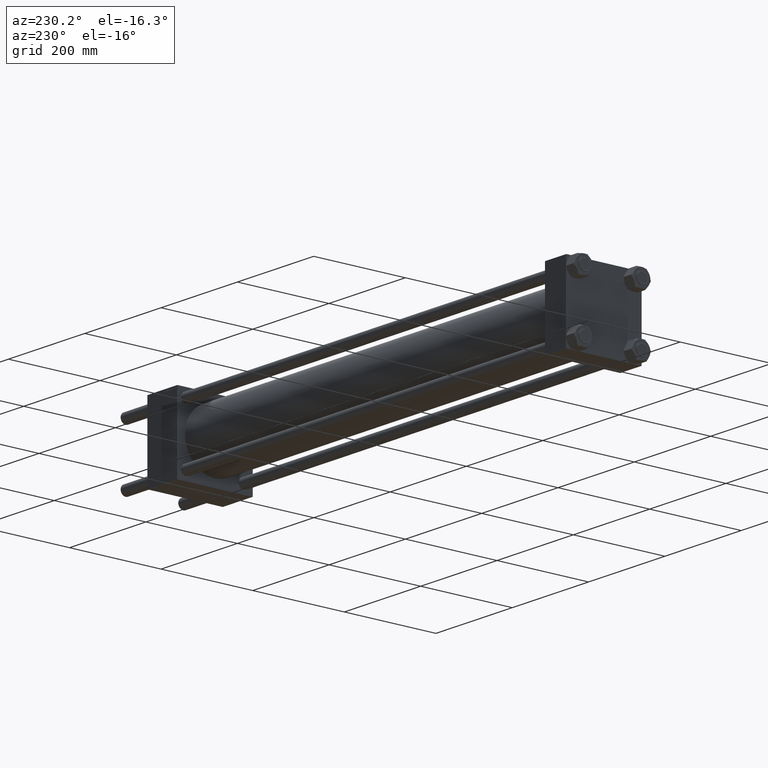
[diagram: clean part render]
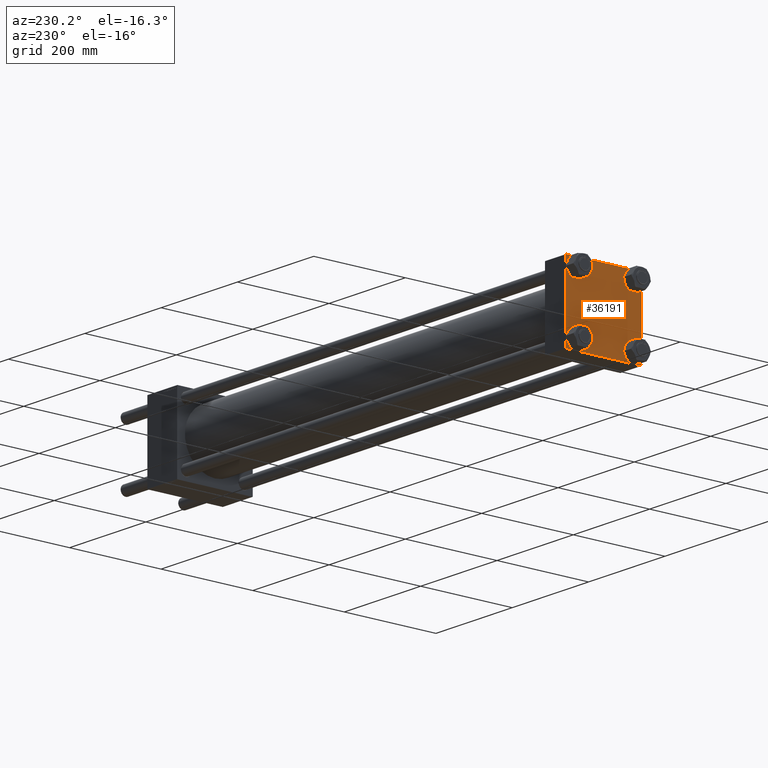
[diagram: same view with one face highlighted and labeled with its STEP entity id]
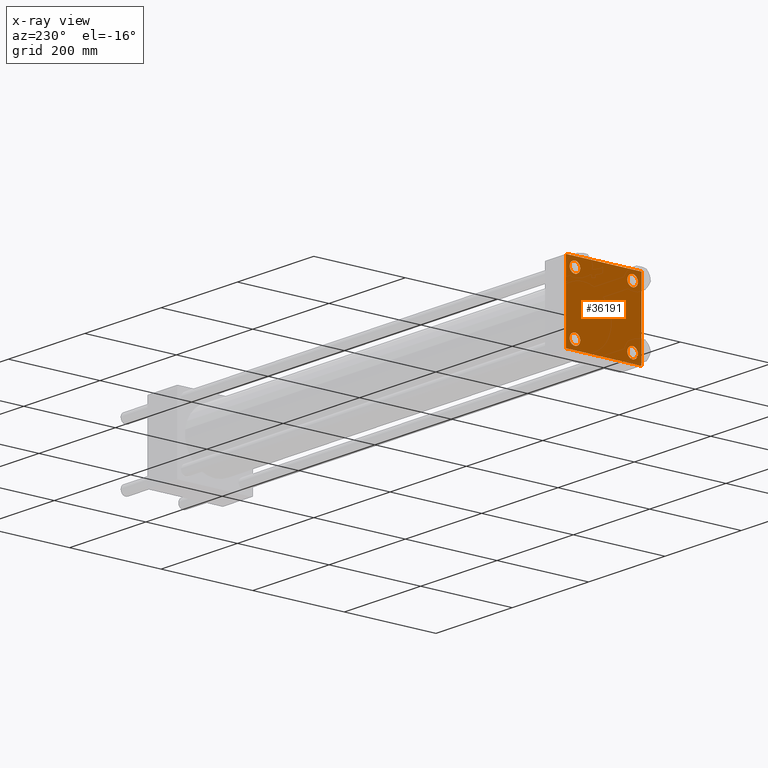
[diagram: x-ray of the same camera — body ghosted, the highlighted face saturated]
A machine part, auxiliary view. The second image highlights one B-rep face of the part: STEP entity #36191.
The next image is the same camera in x-ray: the body ghosted, the highlighted face saturated — about 0% of this face is hidden behind the body in this view.
In plain terms, the highlighted planar face has unit normal (-1, 0, 0).
Its self-contained STEP definition (entity closure, byte-faithful):
#197 = EDGE_CURVE ( 'NONE', #14874, #30146, #31650, .T. ) ;
#573 = CARTESIAN_POINT ( 'NONE',  ( 0.000000000000000000, 62.95000000000000284, -62.95000000000000284 ) ) ;
#669 = CARTESIAN_POINT ( 'NONE',  ( 0.000000000000000000, -82.25000000000000000, 82.25000000000000000 ) ) ;
#713 = DIRECTION ( 'NONE',  ( 0.000000000000000000, -1.000000000000000000, -1.682156097916903588E-16 ) ) ;
#848 = LINE ( 'NONE', #27758, #32586 ) ;
#852 = DIRECTION ( 'NONE',  ( 0.000000000000000000, 0.000000000000000000, 1.000000000000000000 ) ) ;
#1113 = ORIENTED_EDGE ( 'NONE', *, *, #48569, .T. ) ;
#1197 = CARTESIAN_POINT ( 'NONE',  ( 0.000000000000000000, -82.00000000000000000, -82.50000000000000000 ) ) ;
#1689 = LINE ( 'NONE', #7163, #2429 ) ;
#2043 = CARTESIAN_POINT ( 'NONE',  ( 0.000000000000000000, 62.95000000000000284, -74.45000000000001705 ) ) ;
#2089 = VECTOR ( 'NONE', #713, 1000.000000000000000 ) ;
#2276 = VERTEX_POINT ( 'NONE', #48879 ) ;
#2326 = VECTOR ( 'NONE', #52341, 1000.000000000000000 ) ;
#2429 = VECTOR ( 'NONE', #41906, 1000.000000000000000 ) ;
#2676 = DIRECTION ( 'NONE',  ( 0.000000000000000000, 0.000000000000000000, 1.000000000000000000 ) ) ;
#2876 = CIRCLE ( 'NONE', #7371, 11.50000000000001066 ) ;
#2967 = CARTESIAN_POINT ( 'NONE',  ( 0.000000000000000000, -62.94999999999998153, -62.95000000000001705 ) ) ;
#3061 = CARTESIAN_POINT ( 'NONE',  ( 0.000000000000000000, -82.49999999999997158, 82.00000000000001421 ) ) ;
#3318 = EDGE_CURVE ( 'NONE', #45412, #2276, #56685, .T. ) ;
#3422 = VECTOR ( 'NONE', #47336, 1000.000000000000114 ) ;
#4483 = CARTESIAN_POINT ( 'NONE',  ( 0.000000000000000000, -62.94999999999998153, -62.95000000000001705 ) ) ;
#4817 = DIRECTION ( 'NONE',  ( 0.000000000000000000, 0.000000000000000000, 1.000000000000000000 ) ) ;
#5152 = CARTESIAN_POINT ( 'NONE',  ( 0.000000000000000000, 62.95000000000000284, 51.44999999999999574 ) ) ;
#5168 = LINE ( 'NONE', #23394, #31184 ) ;
#5272 = DIRECTION ( 'NONE',  ( 0.000000000000000000, -0.7071067811865376918, 0.7071067811865574537 ) ) ;
#5434 = VERTEX_POINT ( 'NONE', #51246 ) ;
#5531 = DIRECTION ( 'NONE',  ( 1.000000000000000000, -0.000000000000000000, -0.000000000000000000 ) ) ;
#6561 = VERTEX_POINT ( 'NONE', #36132 ) ;
#6781 = VERTEX_POINT ( 'NONE', #16109 ) ;
#7163 = CARTESIAN_POINT ( 'NONE',  ( 0.000000000000000000, 82.50000000000002842, 82.50000000000002842 ) ) ;
#7294 = DIRECTION ( 'NONE',  ( 0.000000000000000000, 0.000000000000000000, 1.000000000000000000 ) ) ;
#7302 = DIRECTION ( 'NONE',  ( 1.000000000000000000, -0.000000000000000000, -0.000000000000000000 ) ) ;
#7371 = AXIS2_PLACEMENT_3D ( 'NONE', #26687, #5531, #18017 ) ;
#7379 = VERTEX_POINT ( 'NONE', #35644 ) ;
#8677 = ORIENTED_EDGE ( 'NONE', *, *, #28358, .T. ) ;
#9066 = DIRECTION ( 'NONE',  ( -0.000000000000000000, 0.7071067811865474617, 0.7071067811865474617 ) ) ;
#9516 = VERTEX_POINT ( 'NONE', #35990 ) ;
#9816 = DIRECTION ( 'NONE',  ( 0.000000000000000000, 0.000000000000000000, 1.000000000000000000 ) ) ;
#11070 = DIRECTION ( 'NONE',  ( 1.000000000000000000, -0.000000000000000000, -0.000000000000000000 ) ) ;
#12094 = AXIS2_PLACEMENT_3D ( 'NONE', #40049, #18060, #31649 ) ;
#12642 = DIRECTION ( 'NONE',  ( -1.000000000000000000, 0.000000000000000000, 0.000000000000000000 ) ) ;
#12663 = EDGE_CURVE ( 'NONE', #15718, #6561, #22298, .T. ) ;
#12742 = CARTESIAN_POINT ( 'NONE',  ( 0.000000000000000000, 62.95000000000000284, -62.95000000000000284 ) ) ;
#12775 = CIRCLE ( 'NONE', #17409, 11.50000000000001066 ) ;
#13392 = EDGE_CURVE ( 'NONE', #55598, #23619, #56504, .T. ) ;
#13498 = FACE_OUTER_BOUND ( 'NONE', #48703, .T. ) ;
#13940 = LINE ( 'NONE', #39727, #39045 ) ;
#14153 = DIRECTION ( 'NONE',  ( 1.000000000000000000, -0.000000000000000000, -0.000000000000000000 ) ) ;
#14224 = ORIENTED_EDGE ( 'NONE', *, *, #57176, .T. ) ;
#14426 = CIRCLE ( 'NONE', #49537, 11.50000000000001066 ) ;
#14588 = LINE ( 'NONE', #49613, #2089 ) ;
#14874 = VERTEX_POINT ( 'NONE', #3061 ) ;
#14976 = AXIS2_PLACEMENT_3D ( 'NONE', #12742, #14153, #9816 ) ;
#15718 = VERTEX_POINT ( 'NONE', #18898 ) ;
#15759 = CIRCLE ( 'NONE', #12094, 11.50000000000001066 ) ;
#16109 = CARTESIAN_POINT ( 'NONE',  ( 0.000000000000000000, 82.00000000000005684, 82.50000000000002842 ) ) ;
#16971 = CARTESIAN_POINT ( 'NONE',  ( 0.000000000000000000, 82.25000000000002842, 82.25000000000002842 ) ) ;
#17277 = CARTESIAN_POINT ( 'NONE',  ( 0.000000000000000000, 0.000000000000000000, 0.000000000000000000 ) ) ;
#17409 = AXIS2_PLACEMENT_3D ( 'NONE', #4483, #25902, #34887 ) ;
#17548 = EDGE_LOOP ( 'NONE', ( #45993, #45373 ) ) ;
#17857 = FACE_BOUND ( 'NONE', #18423, .T. ) ;
#18017 = DIRECTION ( 'NONE',  ( 0.000000000000000000, 0.000000000000000000, 1.000000000000000000 ) ) ;
#18060 = DIRECTION ( 'NONE',  ( 1.000000000000000000, -0.000000000000000000, -0.000000000000000000 ) ) ;
#18144 = FACE_BOUND ( 'NONE', #17548, .T. ) ;
#18244 = DIRECTION ( 'NONE',  ( 1.000000000000000000, -0.000000000000000000, -0.000000000000000000 ) ) ;
#18423 = EDGE_LOOP ( 'NONE', ( #42634, #8677 ) ) ;
#18496 = VERTEX_POINT ( 'NONE', #30512 ) ;
#18898 = CARTESIAN_POINT ( 'NONE',  ( 0.000000000000000000, -62.94999999999998153, 74.45000000000003126 ) ) ;
#20759 = AXIS2_PLACEMENT_3D ( 'NONE', #33360, #11070, #7294 ) ;
#21613 = FACE_BOUND ( 'NONE', #45976, .T. ) ;
#21885 = EDGE_CURVE ( 'NONE', #14874, #7379, #848, .T. ) ;
#22298 = CIRCLE ( 'NONE', #32466, 11.50000000000001066 ) ;
#22593 = ORIENTED_EDGE ( 'NONE', *, *, #56560, .T. ) ;
#22830 = DIRECTION ( 'NONE',  ( -0.000000000000000000, -0.7071067811865474617, -0.7071067811865474617 ) ) ;
#23301 = CIRCLE ( 'NONE', #14976, 11.50000000000001066 ) ;
#23394 = CARTESIAN_POINT ( 'NONE',  ( 0.000000000000000000, 82.25000000000001421, -82.25000000000001421 ) ) ;
#23619 = VERTEX_POINT ( 'NONE', #26690 ) ;
#24470 = CIRCLE ( 'NONE', #20759, 11.50000000000001066 ) ;
#25102 = ORIENTED_EDGE ( 'NONE', *, *, #41310, .T. ) ;
#25326 = VECTOR ( 'NONE', #9066, 1000.000000000000114 ) ;
#25902 = DIRECTION ( 'NONE',  ( 1.000000000000000000, -0.000000000000000000, -0.000000000000000000 ) ) ;
#26687 = CARTESIAN_POINT ( 'NONE',  ( 0.000000000000000000, 62.95000000000000284, 62.95000000000000284 ) ) ;
#26690 = CARTESIAN_POINT ( 'NONE',  ( 0.000000000000000000, 62.95000000000000284, -51.44999999999999574 ) ) ;
#27758 = CARTESIAN_POINT ( 'NONE',  ( 0.000000000000000000, -82.49999999999997158, 82.50000000000001421 ) ) ;
#28358 = EDGE_CURVE ( 'NONE', #6561, #15718, #24470, .T. ) ;
#28629 = ORIENTED_EDGE ( 'NONE', *, *, #55853, .T. ) ;
#30146 = VERTEX_POINT ( 'NONE', #33641 ) ;
#30352 = DIRECTION ( 'NONE',  ( 0.000000000000000000, 0.000000000000000000, 1.000000000000000000 ) ) ;
#30354 = CARTESIAN_POINT ( 'NONE',  ( 0.000000000000000000, 82.50000000000002842, 82.50000000000002842 ) ) ;
#30512 = CARTESIAN_POINT ( 'NONE',  ( 0.000000000000000000, 82.00000000000005684, -82.49999999999997158 ) ) ;
#31184 = VECTOR ( 'NONE', #22830, 1000.000000000000114 ) ;
#31540 = DIRECTION ( 'NONE',  ( 0.000000000000000000, -1.682156097916903588E-16, -1.000000000000000000 ) ) ;
#31553 = AXIS2_PLACEMENT_3D ( 'NONE', #573, #18244, #852 ) ;
#31649 = DIRECTION ( 'NONE',  ( 0.000000000000000000, 0.000000000000000000, 1.000000000000000000 ) ) ;
#31650 = LINE ( 'NONE', #669, #25326 ) ;
#32466 = AXIS2_PLACEMENT_3D ( 'NONE', #39614, #34702, #30352 ) ;
#32586 = VECTOR ( 'NONE', #31540, 1000.000000000000000 ) ;
#32861 = AXIS2_PLACEMENT_3D ( 'NONE', #17277, #12642, #4817 ) ;
#33360 = CARTESIAN_POINT ( 'NONE',  ( 0.000000000000000000, -62.94999999999998153, 62.95000000000001705 ) ) ;
#33641 = CARTESIAN_POINT ( 'NONE',  ( 0.000000000000000000, -81.99999999999997158, 82.50000000000001421 ) ) ;
#34702 = DIRECTION ( 'NONE',  ( 1.000000000000000000, -0.000000000000000000, -0.000000000000000000 ) ) ;
#34887 = DIRECTION ( 'NONE',  ( 0.000000000000000000, 0.000000000000000000, 1.000000000000000000 ) ) ;
#35188 = EDGE_CURVE ( 'NONE', #6781, #30146, #1689, .T. ) ;
#35644 = CARTESIAN_POINT ( 'NONE',  ( 0.000000000000000000, -82.50000000000000000, -81.99999999999998579 ) ) ;
#35990 = CARTESIAN_POINT ( 'NONE',  ( 0.000000000000000000, -62.94999999999998153, -51.45000000000000995 ) ) ;
#36132 = CARTESIAN_POINT ( 'NONE',  ( 0.000000000000000000, -62.94999999999998153, 51.45000000000000995 ) ) ;
#36191 = ADVANCED_FACE ( 'NONE', ( #17857, #18144, #21613, #53146, #13498 ), #52577, .T. ) ;
#37432 = EDGE_CURVE ( 'NONE', #9516, #43552, #14426, .T. ) ;
#38330 = ORIENTED_EDGE ( 'NONE', *, *, #197, .T. ) ;
#39045 = VECTOR ( 'NONE', #5272, 999.9999999999998863 ) ;
#39437 = CARTESIAN_POINT ( 'NONE',  ( 0.000000000000000000, -62.94999999999998153, -74.45000000000003126 ) ) ;
#39614 = CARTESIAN_POINT ( 'NONE',  ( 0.000000000000000000, -62.94999999999998153, 62.95000000000001705 ) ) ;
#39727 = CARTESIAN_POINT ( 'NONE',  ( 0.000000000000000000, -82.25000000000115108, -82.24999999999886313 ) ) ;
#39927 = EDGE_LOOP ( 'NONE', ( #41680, #1113 ) ) ;
#40049 = CARTESIAN_POINT ( 'NONE',  ( 0.000000000000000000, 62.95000000000000284, 62.95000000000000284 ) ) ;
#40136 = VERTEX_POINT ( 'NONE', #5152 ) ;
#40306 = ORIENTED_EDGE ( 'NONE', *, *, #3318, .T. ) ;
#41310 = EDGE_CURVE ( 'NONE', #2276, #18496, #5168, .T. ) ;
#41680 = ORIENTED_EDGE ( 'NONE', *, *, #46648, .T. ) ;
#41906 = DIRECTION ( 'NONE',  ( 0.000000000000000000, -1.000000000000000000, -8.410780489584519171E-17 ) ) ;
#42085 = EDGE_CURVE ( 'NONE', #6781, #45412, #43009, .T. ) ;
#42634 = ORIENTED_EDGE ( 'NONE', *, *, #12663, .T. ) ;
#43009 = LINE ( 'NONE', #16971, #3422 ) ;
#43552 = VERTEX_POINT ( 'NONE', #39437 ) ;
#44028 = EDGE_CURVE ( 'NONE', #43552, #9516, #12775, .T. ) ;
#44061 = ORIENTED_EDGE ( 'NONE', *, *, #35188, .F. ) ;
#45373 = ORIENTED_EDGE ( 'NONE', *, *, #44028, .T. ) ;
#45412 = VERTEX_POINT ( 'NONE', #49966 ) ;
#45976 = EDGE_LOOP ( 'NONE', ( #28629, #49011 ) ) ;
#45993 = ORIENTED_EDGE ( 'NONE', *, *, #37432, .T. ) ;
#46648 = EDGE_CURVE ( 'NONE', #5434, #40136, #15759, .T. ) ;
#46910 = ORIENTED_EDGE ( 'NONE', *, *, #42085, .T. ) ;
#47336 = DIRECTION ( 'NONE',  ( 0.000000000000000000, 0.7071067811865474617, -0.7071067811865474617 ) ) ;
#48569 = EDGE_CURVE ( 'NONE', #40136, #5434, #2876, .T. ) ;
#48703 = EDGE_LOOP ( 'NONE', ( #40306, #25102, #14224, #22593, #50162, #38330, #44061, #46910 ) ) ;
#48879 = CARTESIAN_POINT ( 'NONE',  ( 0.000000000000000000, 82.50000000000002842, -82.00000000000000000 ) ) ;
#49011 = ORIENTED_EDGE ( 'NONE', *, *, #13392, .T. ) ;
#49537 = AXIS2_PLACEMENT_3D ( 'NONE', #2967, #7302, #2676 ) ;
#49613 = CARTESIAN_POINT ( 'NONE',  ( 0.000000000000000000, 82.50000000000002842, -82.49999999999997158 ) ) ;
#49966 = CARTESIAN_POINT ( 'NONE',  ( 0.000000000000000000, 82.50000000000002842, 82.00000000000005684 ) ) ;
#50162 = ORIENTED_EDGE ( 'NONE', *, *, #21885, .F. ) ;
#51246 = CARTESIAN_POINT ( 'NONE',  ( 0.000000000000000000, 62.95000000000000284, 74.45000000000001705 ) ) ;
#52341 = DIRECTION ( 'NONE',  ( 0.000000000000000000, 0.000000000000000000, -1.000000000000000000 ) ) ;
#52577 = PLANE ( 'NONE',  #32861 ) ;
#53146 = FACE_BOUND ( 'NONE', #39927, .T. ) ;
#55598 = VERTEX_POINT ( 'NONE', #2043 ) ;
#55853 = EDGE_CURVE ( 'NONE', #23619, #55598, #23301, .T. ) ;
#56504 = CIRCLE ( 'NONE', #31553, 11.50000000000001066 ) ;
#56560 = EDGE_CURVE ( 'NONE', #56619, #7379, #13940, .T. ) ;
#56619 = VERTEX_POINT ( 'NONE', #1197 ) ;
#56685 = LINE ( 'NONE', #30354, #2326 ) ;
#57176 = EDGE_CURVE ( 'NONE', #18496, #56619, #14588, .T. ) ;